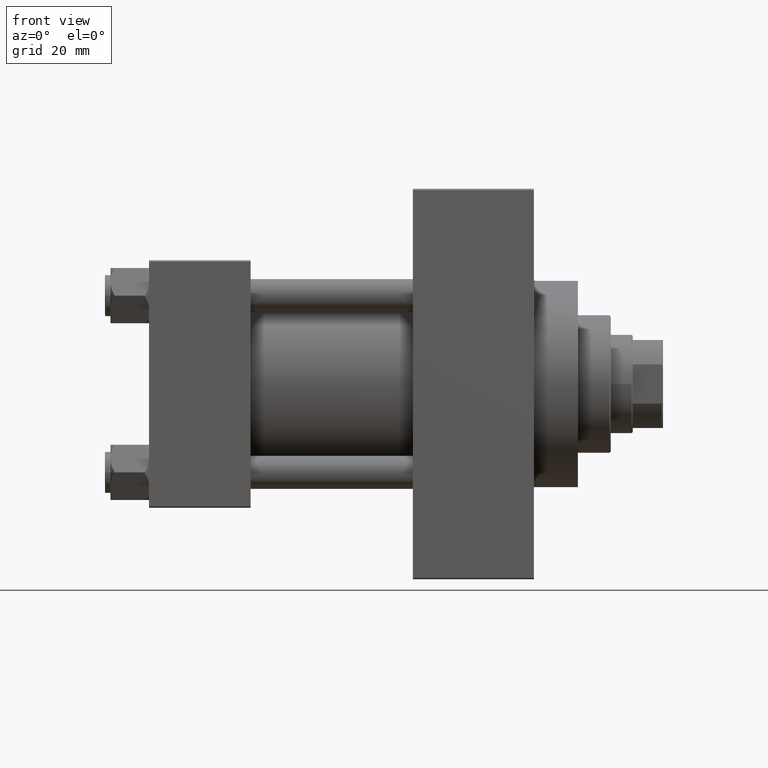
[diagram: clean part render]
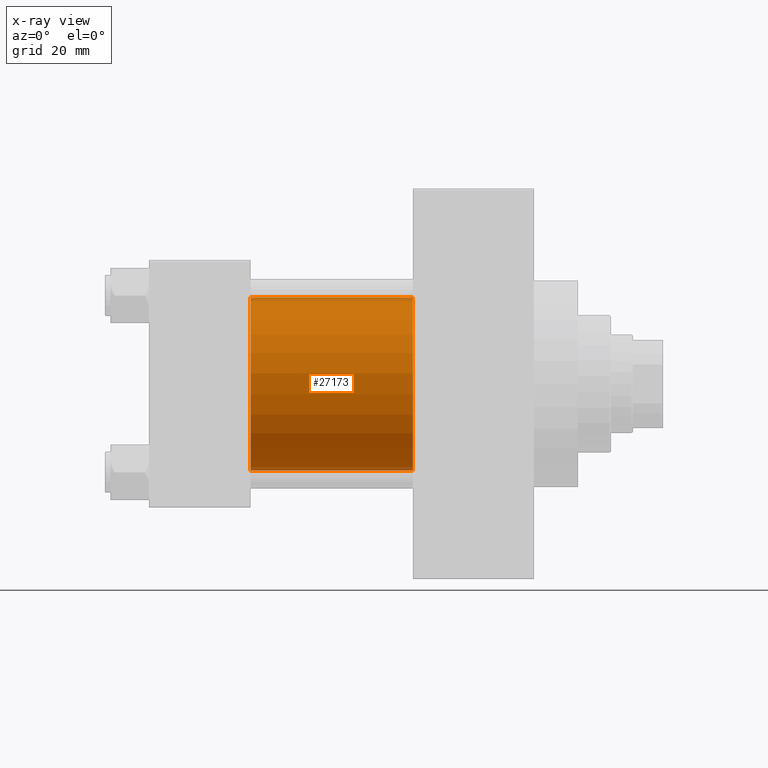
[diagram: x-ray — body ghosted, one internal face saturated and labeled with its STEP entity id]
A machine part, front view, then the same camera in x-ray: the body is ghosted and one INTERNAL B-rep face — a face not visible from any outside direction — is saturated and labeled: STEP entity #27173.
In plain terms, the highlighted cylindrical surface (partial cylindrical patch) has radius 31.5 mm, axis along (-1, -0, -0).
Its self-contained STEP definition (entity closure, byte-faithful):
#2084 = EDGE_LOOP ( 'NONE', ( #31266, #23496, #48735, #15584 ) ) ;
#6480 = CIRCLE ( 'NONE', #27184, 31.50000000000000000 ) ;
#9168 = DIRECTION ( 'NONE',  ( -1.000000000000000000, -0.000000000000000000, -0.000000000000000000 ) ) ;
#11335 = LINE ( 'NONE', #29542, #19544 ) ;
#12069 = DIRECTION ( 'NONE',  ( 1.000000000000000000, 0.000000000000000000, 0.000000000000000000 ) ) ;
#12806 = CARTESIAN_POINT ( 'NONE',  ( 96.00000000000000000, -2.602085213965210642E-15, 0.000000000000000000 ) ) ;
#15371 = VERTEX_POINT ( 'NONE', #19332 ) ;
#15584 = ORIENTED_EDGE ( 'NONE', *, *, #20604, .F. ) ;
#16896 = FACE_OUTER_BOUND ( 'NONE', #2084, .T. ) ;
#18771 = LINE ( 'NONE', #33971, #18977 ) ;
#18873 = AXIS2_PLACEMENT_3D ( 'NONE', #43311, #9168, #32104 ) ;
#18977 = VECTOR ( 'NONE', #34467, 1000.000000000000000 ) ;
#19257 = CARTESIAN_POINT ( 'NONE',  ( 37.00000000000000000, -2.602085213965210642E-15, 0.000000000000000000 ) ) ;
#19332 = CARTESIAN_POINT ( 'NONE',  ( 37.00000000000000000, -2.602085213965210642E-15, 31.50000000000000000 ) ) ;
#19501 = DIRECTION ( 'NONE',  ( 1.000000000000000000, 0.000000000000000000, 0.000000000000000000 ) ) ;
#19544 = VECTOR ( 'NONE', #45239, 1000.000000000000000 ) ;
#20604 = EDGE_CURVE ( 'NONE', #39437, #15371, #11335, .T. ) ;
#22544 = CARTESIAN_POINT ( 'NONE',  ( 37.00000000000000000, 1.255552203348951850E-15, -31.50000000000000000 ) ) ;
#23234 = CIRCLE ( 'NONE', #24027, 31.50000000000000000 ) ;
#23496 = ORIENTED_EDGE ( 'NONE', *, *, #31011, .T. ) ;
#24027 = AXIS2_PLACEMENT_3D ( 'NONE', #19257, #19501, #45418 ) ;
#26902 = CARTESIAN_POINT ( 'NONE',  ( 96.00000000000000000, 1.255552203348951850E-15, -31.50000000000000000 ) ) ;
#27173 = ADVANCED_FACE ( 'NONE', ( #16896 ), #27859, .F. ) ;
#27184 = AXIS2_PLACEMENT_3D ( 'NONE', #12806, #12069, #47205 ) ;
#27859 = CYLINDRICAL_SURFACE ( 'NONE', #18873, 31.50000000000000000 ) ;
#29542 = CARTESIAN_POINT ( 'NONE',  ( 96.00000000000000000, -2.602085213965210642E-15, 31.50000000000000000 ) ) ;
#31011 = EDGE_CURVE ( 'NONE', #36384, #49049, #18771, .T. ) ;
#31266 = ORIENTED_EDGE ( 'NONE', *, *, #38047, .T. ) ;
#32104 = DIRECTION ( 'NONE',  ( 0.000000000000000000, 0.000000000000000000, 1.000000000000000000 ) ) ;
#33971 = CARTESIAN_POINT ( 'NONE',  ( 96.00000000000000000, 1.255552203348951850E-15, -31.50000000000000000 ) ) ;
#34467 = DIRECTION ( 'NONE',  ( -1.000000000000000000, -0.000000000000000000, -0.000000000000000000 ) ) ;
#36384 = VERTEX_POINT ( 'NONE', #26902 ) ;
#37177 = CARTESIAN_POINT ( 'NONE',  ( 96.00000000000000000, -2.602085213965210642E-15, 31.50000000000000000 ) ) ;
#38047 = EDGE_CURVE ( 'NONE', #39437, #36384, #6480, .T. ) ;
#39437 = VERTEX_POINT ( 'NONE', #37177 ) ;
#42422 = EDGE_CURVE ( 'NONE', #15371, #49049, #23234, .T. ) ;
#43311 = CARTESIAN_POINT ( 'NONE',  ( 96.00000000000000000, -2.602085213965210642E-15, 0.000000000000000000 ) ) ;
#45239 = DIRECTION ( 'NONE',  ( -1.000000000000000000, -0.000000000000000000, -0.000000000000000000 ) ) ;
#45418 = DIRECTION ( 'NONE',  ( 0.000000000000000000, 0.000000000000000000, -1.000000000000000000 ) ) ;
#47205 = DIRECTION ( 'NONE',  ( 0.000000000000000000, 0.000000000000000000, -1.000000000000000000 ) ) ;
#48735 = ORIENTED_EDGE ( 'NONE', *, *, #42422, .F. ) ;
#49049 = VERTEX_POINT ( 'NONE', #22544 ) ;